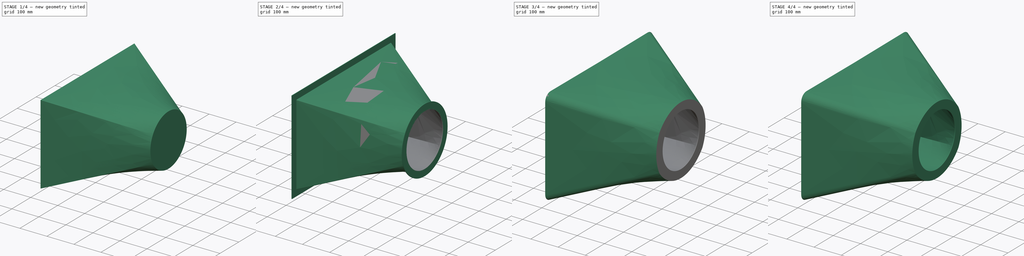
[diagram: build sequence overview — one tinted view per stage of 4, left to right]
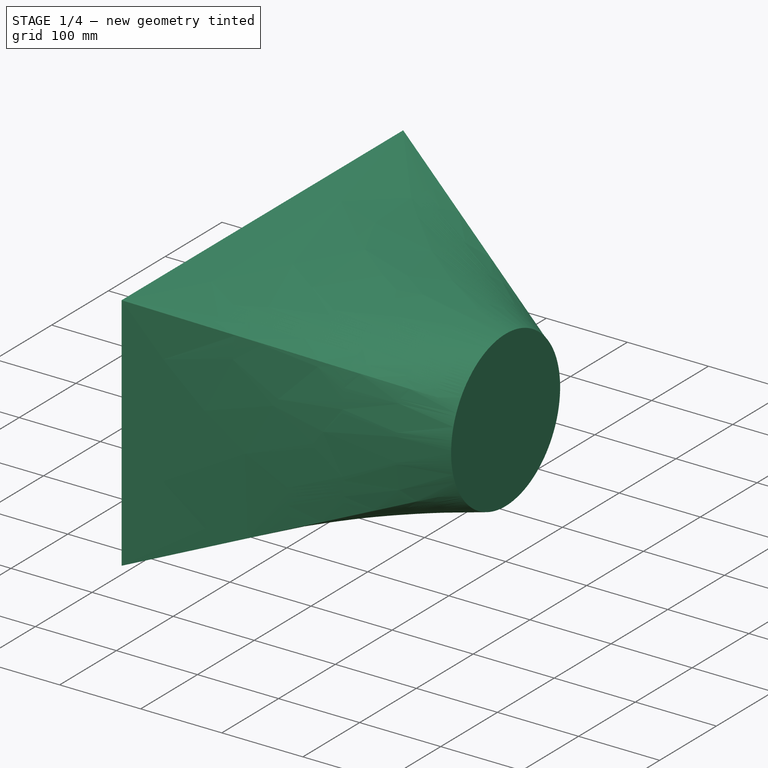
[diagram: stage 1 of 4 — iso view after this stage's code; geometry added in this stage tinted green]
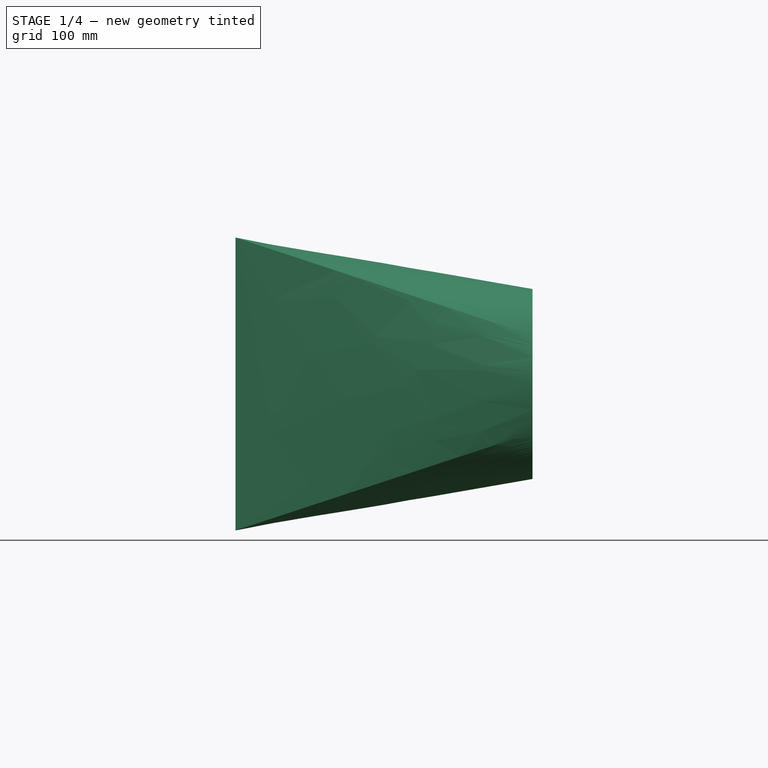
[diagram: stage 1 of 4 — front view after this stage's code; geometry added in this stage tinted green]
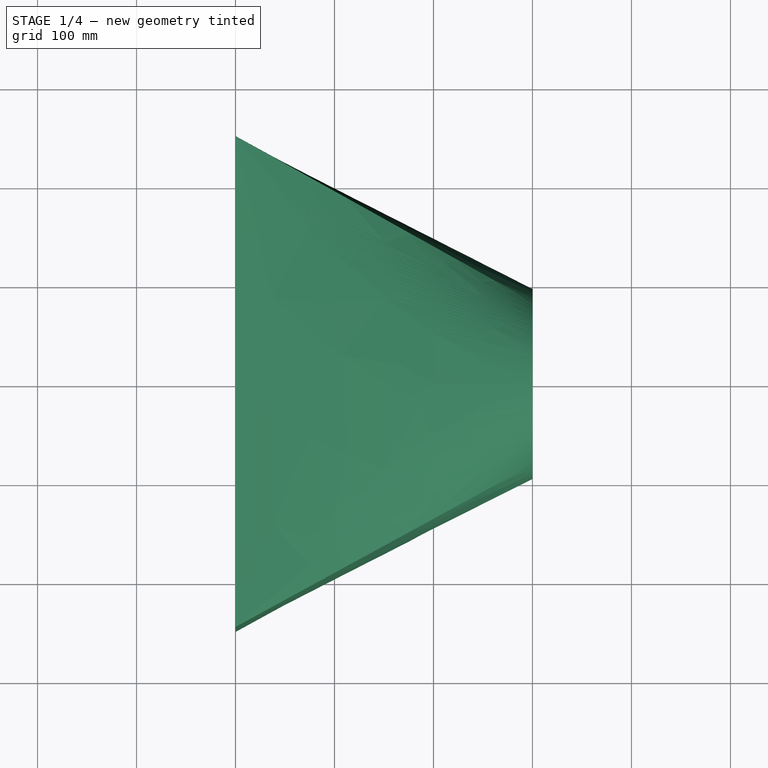
[diagram: stage 1 of 4 — top view after this stage's code; geometry added in this stage tinted green]
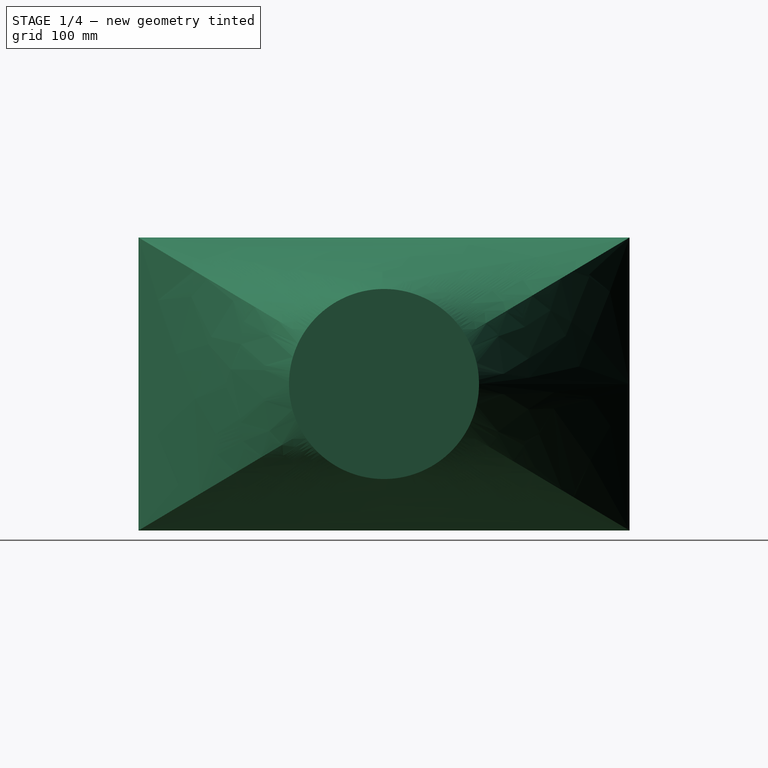
[diagram: stage 1 of 4 — right view after this stage's code; geometry added in this stage tinted green]
FCSTD DOCUMENT  (FreeCAD 0.16R6704 (Git))
Label: Square_round_transition_duct
License: All rights reserved
LicenseURL: http://en.wikipedia.org/wiki/All_rights_reserved
objects: App::DocumentObjectGroup×7, Sketcher::SketchObject×5, Part::FeaturePython×4, Part::Extrusion×3, Part::Sweep×2, Part::Thickness×2, Spreadsheet::Sheet×1, Part::Compound×1
note: 17 computed .brp shape members not serialized (recipe doc carries the construction recipe); baked Part::Feature solids carry a one-line shape summary decoded from their .brp

FEATURE [Sketcher::SketchObject] Sketch012  label="LENGHT_rectangular_circular_duct"
  expr: Constraints.Duct_length = Settings_rectangular_circular_duct.length_piece
  sketch-geometry (1):
    g0: LineSegment StartX=0 StartY=0 StartZ=0 EndX=300 EndY=0 EndZ=0
  constraints (3):
    c: Coincident(g0,g-1)
    c: Horizontal(g0)
    c: DistanceX(g0,g0) = 300  'Duct_length'
FEATURE [Sketcher::SketchObject] Sketch013  label="DIMENSIONS_rectangle"
  Placement = pos=(0,0,0) rot=(0.57735,0.57735,0.57735;2.0944rad)
  expr: Constraints.Duct_heigth = Settings_rectangular_circular_duct.h_side_1 - 2 * Settings_rectangular_circular_duct.sheet_thickness
  expr: Constraints.Duct_width = Settings_rectangular_circular_duct.w_side_1 - 2 * Settings_rectangular_circular_duct.sheet_thickness
  sketch-geometry (7):
    g0: LineSegment StartX=-248 StartY=148 StartZ=0 EndX=248 EndY=148 EndZ=0
    g1: LineSegment StartX=248 StartY=148 StartZ=0 EndX=248 EndY=-148 EndZ=0
    g2: LineSegment StartX=248 StartY=-148 StartZ=0 EndX=-248 EndY=-148 EndZ=0
    g3: LineSegment StartX=-248 StartY=-148 StartZ=0 EndX=-248 EndY=148 EndZ=0
    g4: LineSegment [constr] StartX=-248 StartY=148 StartZ=0 EndX=248 EndY=-148 EndZ=0
    g5: LineSegment [constr] StartX=-248 StartY=-148 StartZ=0 EndX=248 EndY=148 EndZ=0
    g6: GeomPoint [constr] X=0 Y=0 Z=0
  constraints (18):
    c: Coincident(g0,g1)
    c: Coincident(g1,g2)
    c: Coincident(g2,g3)
    c: Coincident(g3,g0)
    c: Horizontal(g0)
    c: Horizontal(g2)
    c: Vertical(g1)
    c: Vertical(g3)
    c: DistanceX(g0,g0) = 496  'Duct_width'
    c: DistanceY(g1,g1) = 296  'Duct_heigth'
    c: Coincident(g4,g0)
    c: Coincident(g4,g1)
    c: Coincident(g5,g2)
    c: Coincident(g5,g0)
    c: PointOnObject(g6,g4)
    c: PointOnObject(g6,g5)
    c: DistanceY(g-1,g6) = 0  'Vertical_distance_axis'
    c: DistanceX(g-1,g6) = 0  'Horizontal_distance_axis'
FEATURE [Part::Sweep] Sweep012  label="Base_01 "
  Frenet = false
  Sections = -> [Sketch013]
  Solid = true
  Spine = -> Sketch012 [Edge1]
  Transition = 1
FEATURE [Sketcher::SketchObject] Sketch014  label="RADIUS_circle"
  ExternalGeometry = -> [Sweep012]
  Placement = pos=(300,0,0) rot=(0.57735,0.57735,0.57735;2.0944rad)
  Support = -> Sweep012 [Face6]
  expr: Constraints.Horizontal_distance_axis = Settings_rectangular_circular_duct.d_h_axis_02
  expr: Constraints.Duct_radius = Settings_rectangular_circular_duct.r_side_2 - 2 * Settings_rectangular_circular_duct.sheet_thickness
  expr: Constraints.Vertical_distance_axis = Settings_rectangular_circular_duct.d_v_axis_02
  sketch-geometry (4):
    g0: LineSegment [constr] StartX=-248 StartY=148 StartZ=0 EndX=248 EndY=-148 EndZ=0
    g1: LineSegment [constr] StartX=248 StartY=148 StartZ=0 EndX=-248 EndY=-148 EndZ=0
    g2: GeomPoint [constr] X=0 Y=0 Z=0
    g3: Circle CenterX=0 CenterY=0 CenterZ=0 NormalX=0 NormalY=0 NormalZ=1 Radius=96
  constraints (9):
    c: Coincident(g0,g-4)
    c: Coincident(g0,g-6)
    c: Coincident(g1,g-5)
    c: Coincident(g1,g-6)
    c: PointOnObject(g2,g1)
    c: PointOnObject(g2,g0)
    c: Radius(g3) = 96  'Duct_radius'
    c: DistanceX(g-1,g3) = 0  'Horizontal_distance_axis'
    c: DistanceY(g-1,g3) = 0  'Vertical_distance_axis'
FEATURE [Part::Sweep] Sweep013  label="Base_02 "
  Frenet = false
  Sections = -> [Sketch013,Sketch014]
  Solid = true
  Spine = -> Sketch012 [Edge1]
  Transition = 1
FEATURE [Part::Extrusion] Extrude_Sketch014  label="Base_circular_flange"
  Base = -> Sketch014
  Dir = (-2,0,0)
  Solid = true
  expr: Dir.x = Settings_rectangular_circular_duct.sheet_thickness * -1
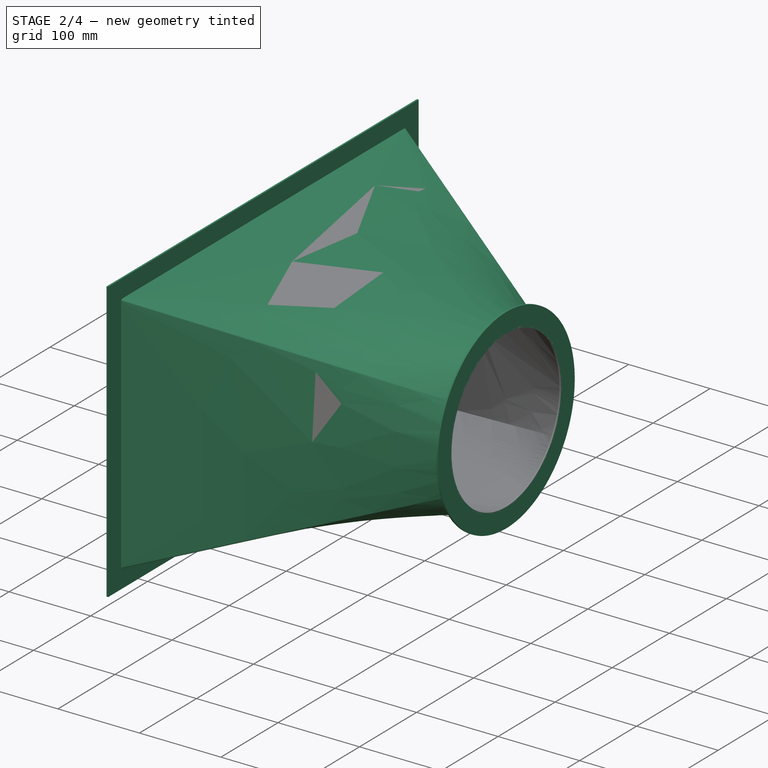
[diagram: stage 2 of 4 — iso view after this stage's code; geometry added in this stage tinted green]
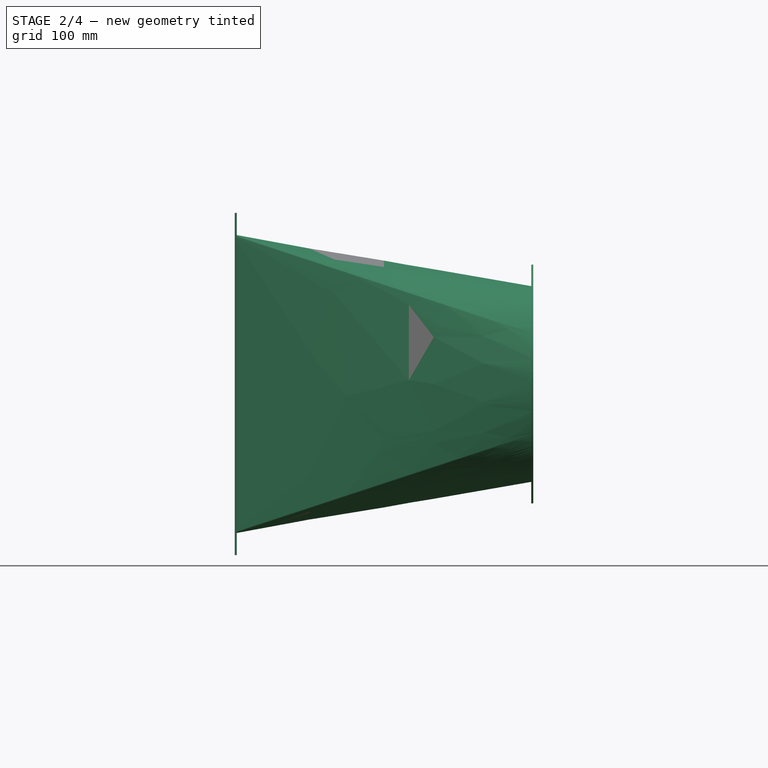
[diagram: stage 2 of 4 — front view after this stage's code; geometry added in this stage tinted green]
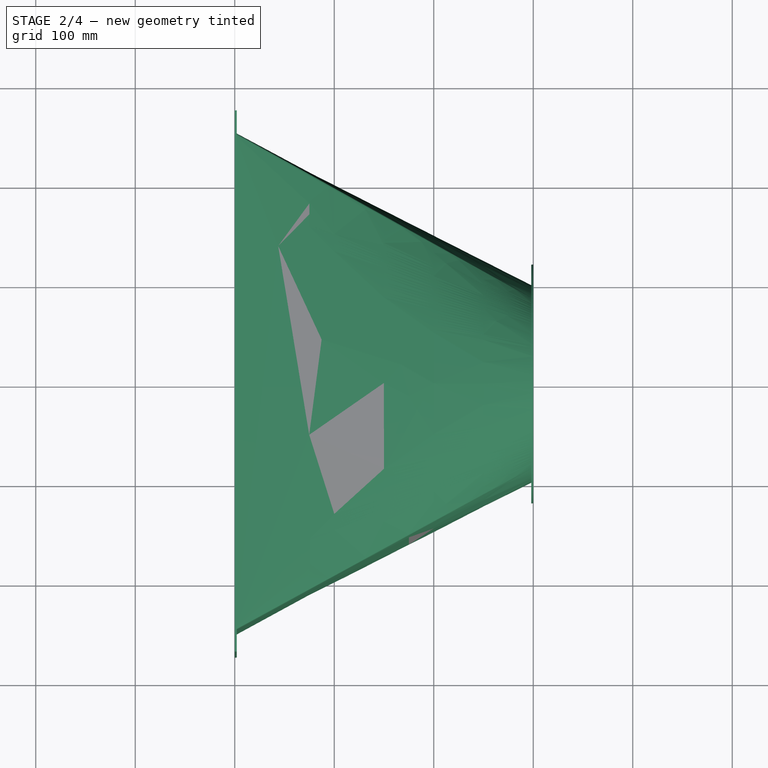
[diagram: stage 2 of 4 — top view after this stage's code; geometry added in this stage tinted green]
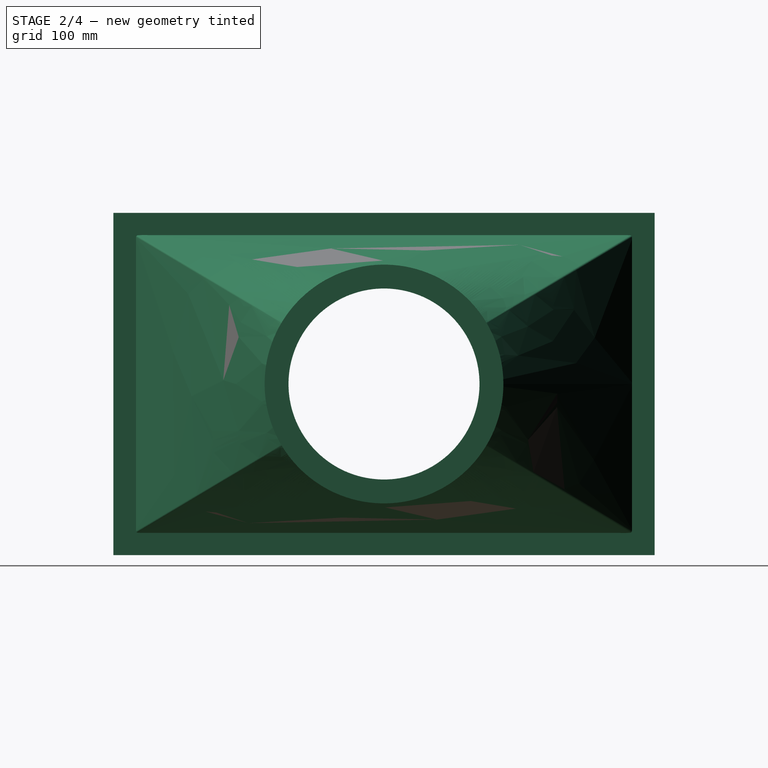
[diagram: stage 2 of 4 — right view after this stage's code; geometry added in this stage tinted green]
FEATURE [Sketcher::SketchObject] Sketch023  label="FLANGE_HEIGHT_rectangular"
  ExternalGeometry = -> [Sweep012]
  Placement = pos=(0,0,0) rot=(0.57735,-0.57735,-0.57735;2.0944rad)
  Support = -> Sweep012 [Face5]
  expr: Constraints.Rectangular_flange = Settings_rectangular_circular_duct.flange_height + 2 * Settings_rectangular_circular_duct.sheet_thickness
  sketch-geometry (12):
    g0: LineSegment StartX=-248 StartY=148 StartZ=0 EndX=248 EndY=148 EndZ=0
    g1: LineSegment StartX=248 StartY=148 StartZ=0 EndX=248 EndY=-148 EndZ=0
    g2: LineSegment StartX=248 StartY=-148 StartZ=0 EndX=-248 EndY=-148 EndZ=0
    g3: LineSegment StartX=-248 StartY=-148 StartZ=0 EndX=-248 EndY=148 EndZ=0
    g4: LineSegment StartX=-272 StartY=172 StartZ=0 EndX=272 EndY=172 EndZ=0
    g5: LineSegment StartX=272 StartY=172 StartZ=0 EndX=272 EndY=-172 EndZ=0
    g6: LineSegment StartX=272 StartY=-172 StartZ=0 EndX=-272 EndY=-172 EndZ=0
    g7: LineSegment StartX=-272 StartY=-172 StartZ=0 EndX=-272 EndY=172 EndZ=0
    g8: LineSegment [constr] StartX=-248 StartY=148 StartZ=0 EndX=-272 EndY=148 EndZ=0
    g9: LineSegment [constr] StartX=-248 StartY=148 StartZ=0 EndX=-248 EndY=172 EndZ=0
    g10: LineSegment [constr] StartX=248 StartY=-148 StartZ=0 EndX=248 EndY=-172 EndZ=0
    g11: LineSegment [constr] StartX=248 StartY=-148 StartZ=0 EndX=272 EndY=-148 EndZ=0
  constraints (38):
    c: Coincident(g0,g1)
    c: Coincident(g1,g2)
    c: Coincident(g2,g3)
    c: Coincident(g3,g0)
    c: Horizontal(g0)
    c: Horizontal(g2)
    c: Vertical(g1)
    c: Vertical(g3)
    c: Coincident(g4,g5)
    c: Coincident(g5,g6)
    c: Coincident(g6,g7)
    c: Coincident(g7,g4)
    c: Horizontal(g4)
    c: Horizontal(g6)
    c: Vertical(g5)
    c: Vertical(g7)
    c: DistanceX(g4,g0) = 24  'Rectangular_flange'
    c: PointOnObject(g8,g3)
    c: PointOnObject(g8,g7)
    c: PointOnObject(g9,g0)
    c: PointOnObject(g9,g4)
    c: PointOnObject(g10,g2)
    c: Angle(g9) = 1.5708
    c: Angle(g8) = 3.14159
    c: PointOnObject(g11,g1)
    c: PointOnObject(g11,g5)
    c: Angle(g11) = 0
    c: PointOnObject(g10,g6)
    c: Angle(g10) = -1.5708
    c: Equal(g8,g9)
    c: Equal(g9,g11)
    c: Equal(g11,g10)
    c: Coincident(g11,g1)
    c: Coincident(g10,g1)
    c: Coincident(g0,g9)
    c: Coincident(g0,g8)
    c: Coincident(g0,g-6)
    c: Coincident(g2,g-5)
FEATURE [Part::Extrusion] Extrude_Sketch023  label="Flange_rectangular_THICKNESS"
  Base = -> Sketch023
  Dir = (2,0,0)
  Solid = true
  expr: Dir.x = Settings_rectangular_circular_duct.flange_thickness
FEATURE [Part::Thickness] Thickness006  label="1.1-Rectangular_circular_duct_SHEET_THICKNESS"
  Faces = -> Sweep013 [Face6,Face7]
  Intersection = true
  Join = 0
  Mode = 1
  SelfIntersection = true
  Value = 2
  expr: Value = Settings_rectangular_circular_duct.sheet_thickness
FEATURE [App::DocumentObjectGroup] Grupo010  label="A-Bases"
  Group = -> [Sweep012,Sweep013,Extrude_Sketch014,Sketch012,Sketch023]
FEATURE [Sketcher::SketchObject] Sketch024  label="FLANGE_HEIGHT_circular"
  ExternalGeometry = -> [Extrude_Sketch014]
  Placement = pos=(300,0,0) rot=(0.57735,0.57735,0.57735;2.0944rad)
  Support = -> Extrude_Sketch014 [Face2]
  expr: Constraints.Flange_circular = Settings_rectangular_circular_duct.flange_height + 2 * Settings_rectangular_circular_duct.sheet_thickness
  sketch-geometry (4):
    g0: Circle CenterX=0 CenterY=0 CenterZ=0 NormalX=0 NormalY=0 NormalZ=1 Radius=96
    g1: Circle CenterX=0 CenterY=0 CenterZ=0 NormalX=0 NormalY=0 NormalZ=1 Radius=120
    g2: LineSegment [constr] StartX=-54.829 StartY=106.742 StartZ=0 EndX=-43.8632 EndY=85.3933 EndZ=0
    g3: LineSegment [constr] StartX=-43.8632 StartY=85.3933 StartZ=0 EndX=0 EndY=0 EndZ=0
  constraints (9):
    c: Equal(g-3,g0)
    c: Coincident(g0,g-3)
    c: Coincident(g1,g0)
    c: PointOnObject(g2,g1)
    c: PointOnObject(g2,g-3)
    c: Coincident(g2,g3)
    c: Coincident(g3,g0)
    c: Angle(g2,g3) = 3.14159
    c: Distance(g2) = 24  'Flange_circular'
FEATURE [Part::Extrusion] Extrude_Sketch024  label="Flange_circular_THICKNESS"
  Base = -> Sketch024
  Dir = (-2,0,0)
  Solid = true
  expr: Dir.x = Settings_rectangular_circular_duct.flange_thickness * -1
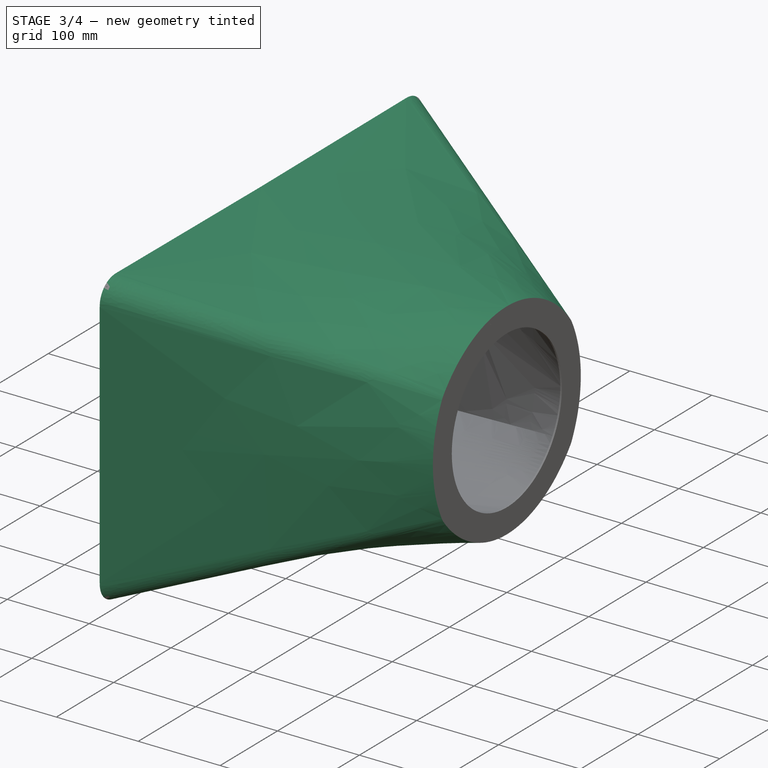
[diagram: stage 3 of 4 — iso view after this stage's code; geometry added in this stage tinted green]
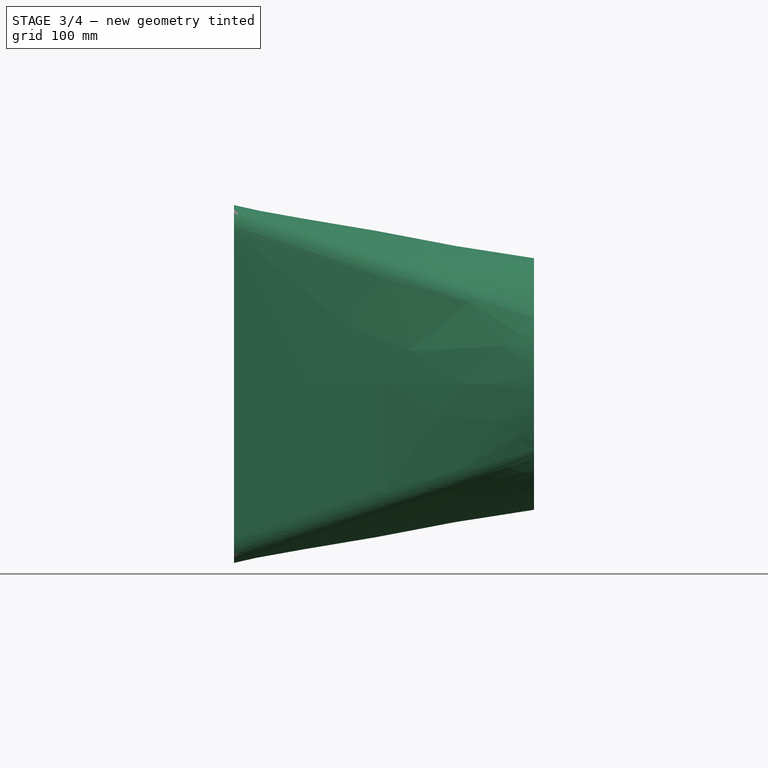
[diagram: stage 3 of 4 — front view after this stage's code; geometry added in this stage tinted green]
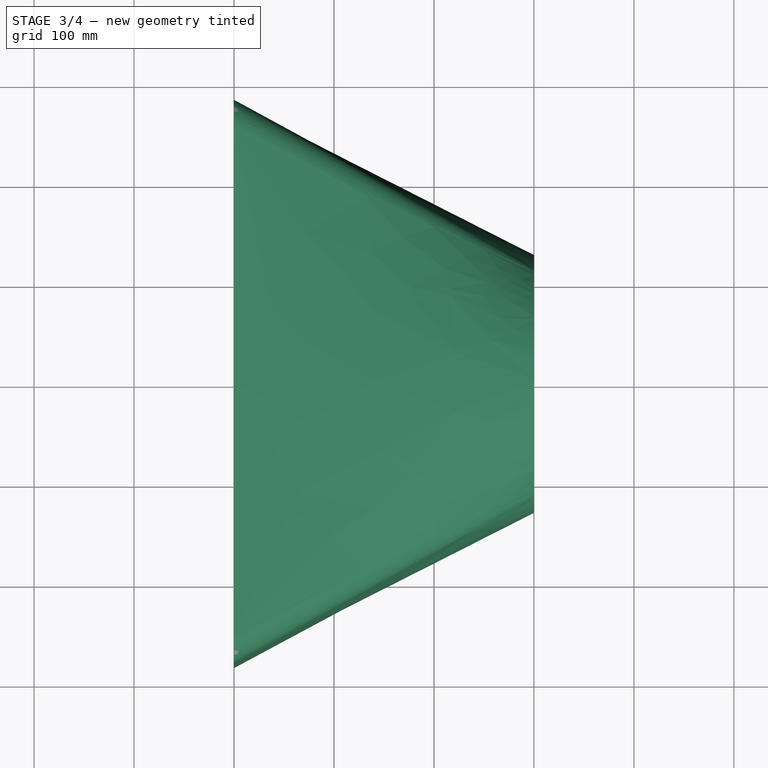
[diagram: stage 3 of 4 — top view after this stage's code; geometry added in this stage tinted green]
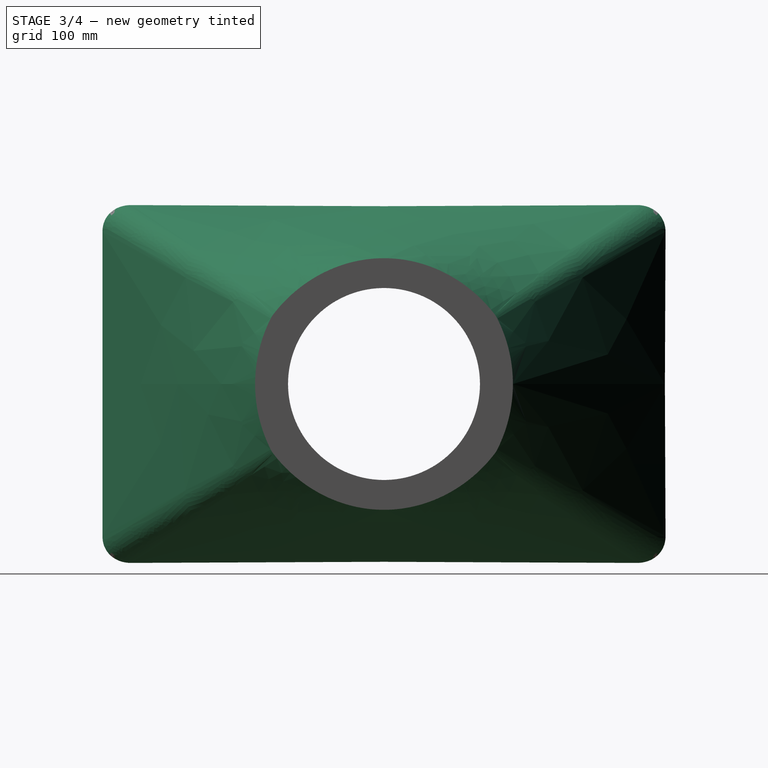
[diagram: stage 3 of 4 — right view after this stage's code; geometry added in this stage tinted green]
FEATURE [Part::Thickness] Thickness007  label="02-Insulation_THICKNESS"
  Faces = -> Sweep013 [Face6,Face7]
  Intersection = false
  Join = 0
  Mode = 0
  SelfIntersection = false
  Value = 29.4
  expr: Value = Settings_rectangular_circular_duct.insu_thickness + 2 * Settings_rectangular_circular_duct.sheet_thickness
FEATURE [App::DocumentObjectGroup] Grupo036  label="No_flanges"
  Group = -> [Clone015,Clone016]
FEATURE [Spreadsheet::Sheet] Spreadsheet004  label="Settings_rectangular_circular_duct"
  cells = A1=Dimensionamento - Settings; A3=01. Comprimento da peça - Piece length:; B3(length_piece)=300; C3=Alias: length_piece; A5=02. Lado 1 - Side 1; A6=2.1. Largura externa do lado 1 - External width side 1:; B6(w_side_1)=500; C6=Alias: w_side_1; A7=2.2. Altura externa do lado 1 - External height side 1:; B7(h_side_1)=300; C7=Alias: h_side_1; A9=03. Lado 2 - Side 2; A10=3.1. Raio externo do lado 2 - External radius side 2:; B10(r_side_2)=100; C10=Alias: r_side_2; A11=3.2. Distância horizontal do eixo - Horizontal distance axis:; B11(d_h_axis_02)=0; C11=Alias: d_h_axis_02; A12=3.3. Distância vertical do eixo - Vertical distance axis:; B12(d_v_axis_02)=0; C12=Alias: d_v_axis_02; A14=04. Espessura da chapa - Sheet thickness:; B14(sheet_thickness)=2; C14=Alias: sheet_thickness; D14=It was not possible to create internal (negative) thickness, only positive (external), therefore it was necessary to discount this value in the external dimensions of the part.; A16=05. Flanges; A17=5.1. Altura flanges - Flanges height:; B17(flange_height)=20; C17=Alias: flange_height; A18=5.2. Espessura flanges - Flanges thickness:; B18(flange_thickness)=2; C18=Alias: flange_thickness; A20=06. Espessura isolamento - Insulation thickness:; B20(insu_thickness)=25.4; C20=Alias: insu_thickness; D20=It was not possible to make the difference between the gross volume of the insulation and the flanges.; D21=It was not possible to create solid perfect form.
FEATURE [Part::Compound] Compound  label="01-Rectangular_circular_duct_flanges"
  Links = -> [Thickness006,Extrude_Sketch024,Extrude_Sketch023]
FEATURE [App::DocumentObjectGroup] Grupo034  label="B-Parts"
  Group = -> [Compound,Thickness007]
FEATURE [App::DocumentObjectGroup] Group012  label="Components"
  Group = -> [Grupo010,Grupo034]
FEATURE [Part::FeaturePython] Clone044  label="Clone of 01-Rectangular_circular_duct_flanges"  # Draft clone (typed FeaturePython)
  Objects = -> [Compound]
  Scale = (1,1,1)
FEATURE [App::DocumentObjectGroup] Grupo037  label="Flanges"
  Group = -> [Clone013,Clone044]
FEATURE [App::DocumentObjectGroup] Grupo035  label="B-Final_parts_clones"
  Group = -> [Grupo036,Grupo037]
FEATURE [App::DocumentObjectGroup] Grupo004  label="Square_round_transition_duct"
  Group = -> [Spreadsheet004,Group012,Grupo035]
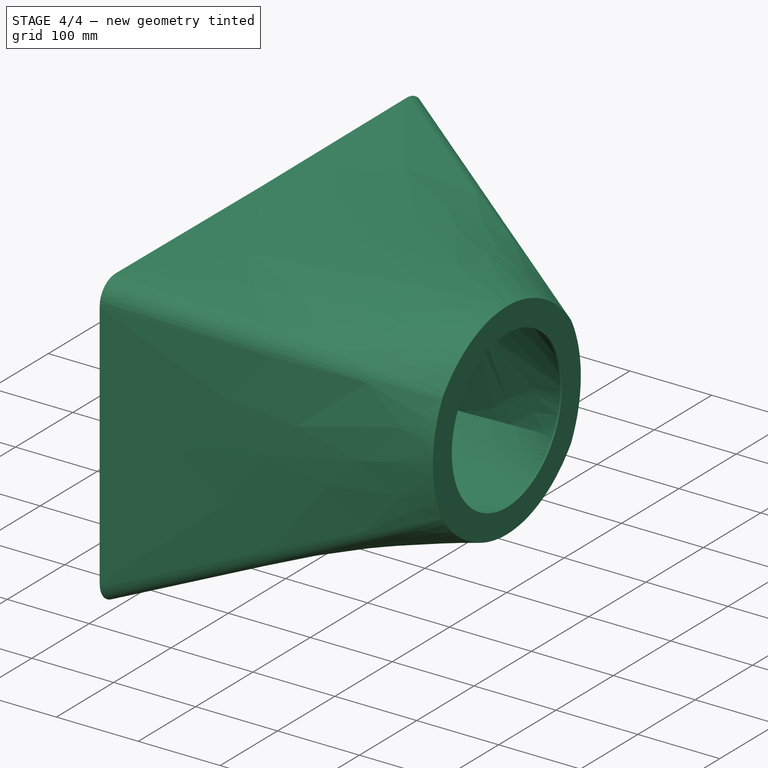
[diagram: stage 4 of 4 — iso view after this stage's code; geometry added in this stage tinted green]
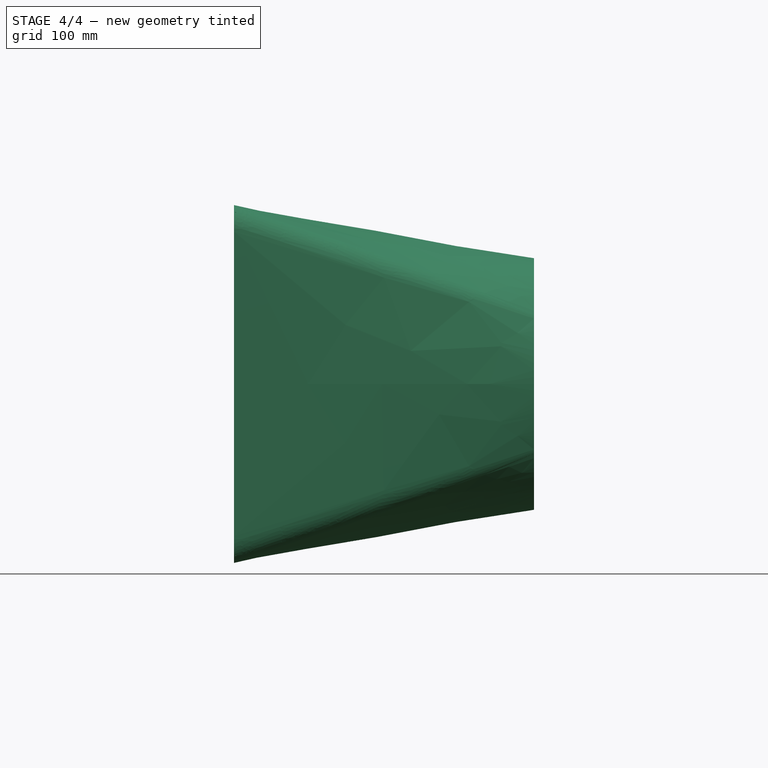
[diagram: stage 4 of 4 — front view after this stage's code; geometry added in this stage tinted green]
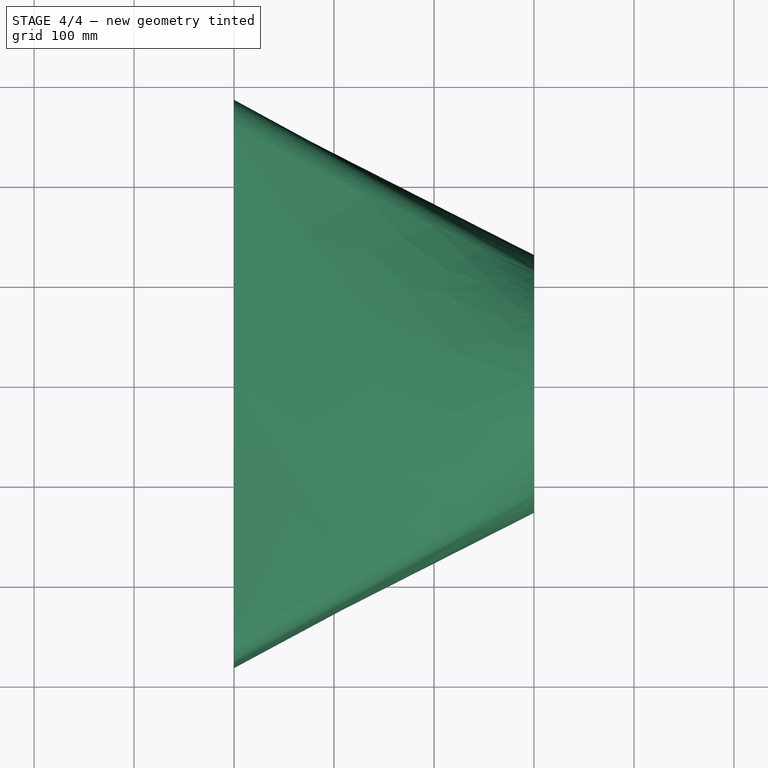
[diagram: stage 4 of 4 — top view after this stage's code; geometry added in this stage tinted green]
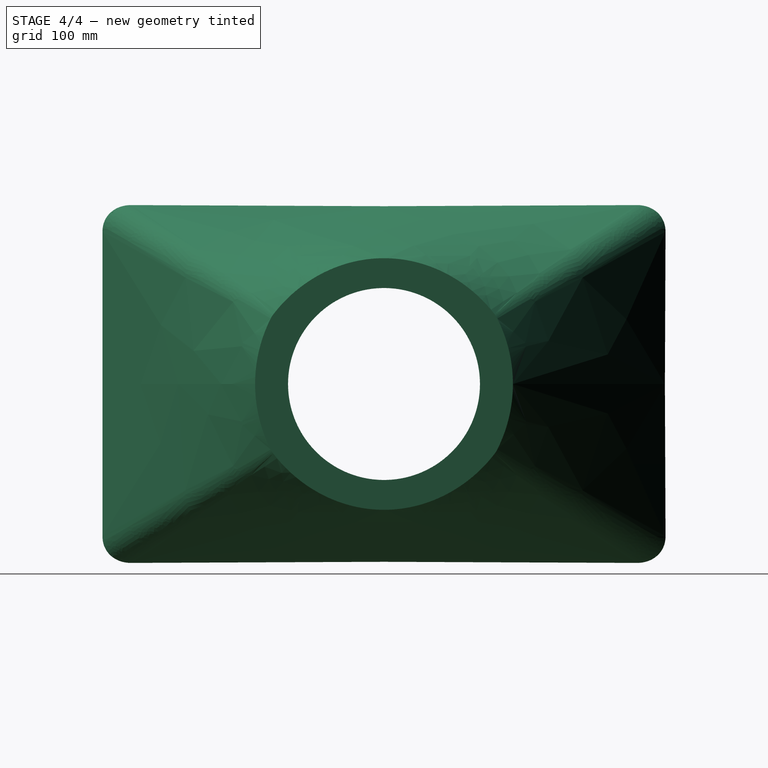
[diagram: stage 4 of 4 — right view after this stage's code; geometry added in this stage tinted green]
FEATURE [Part::FeaturePython] Clone013  label="Clone of 02-Insulation001"  # Draft clone (typed FeaturePython)
  Objects = -> [Thickness007]
  Scale = (1,1,1)
FEATURE [Part::FeaturePython] Clone015  label="Clone of 1.1-Rectangular_circular_duct_SHEET_THICKNESS"  # Draft clone (typed FeaturePython)
  Objects = -> [Thickness006]
  Scale = (1,1,1)
FEATURE [Part::FeaturePython] Clone016  label="Clone of 02-Insulation"  # Draft clone (typed FeaturePython)
  Objects = -> [Thickness007]
  Scale = (1,1,1)
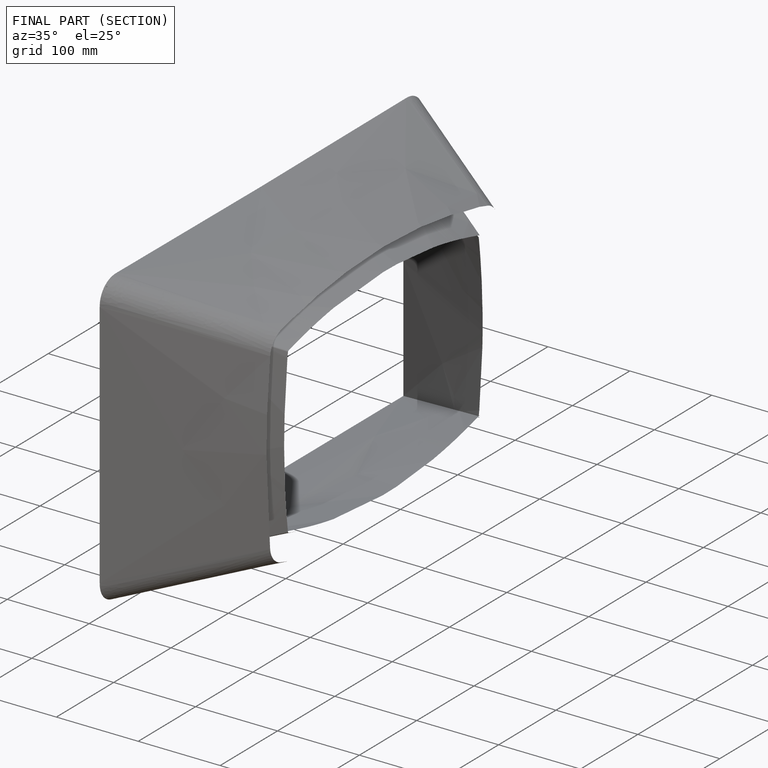
[diagram: finished part — half-section view (interior)]
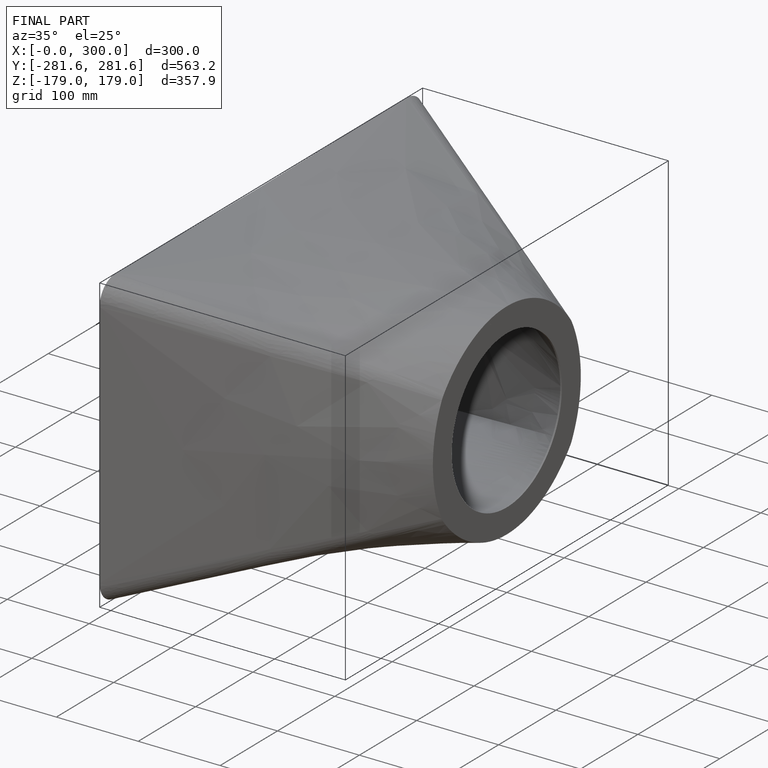
[diagram: finished part — iso view with bounding-box wireframe]
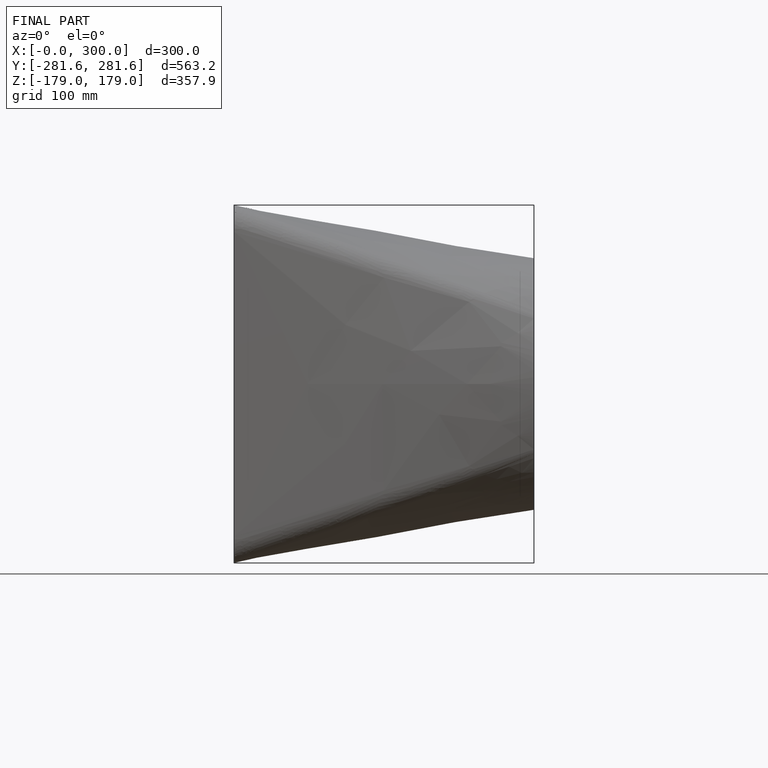
[diagram: finished part — front view with bounding-box wireframe]
